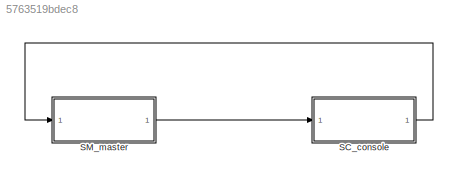
MODEL slx_5763519bdec8
KIND model
CONFIG AbsTol = auto
CONFIG EnableMultiTasking = on
CONFIG FixedStep = 0.001
CONFIG MaxStep = auto
CONFIG MinStep = auto
CONFIG RelTol = 1e-3
CONFIG SampleTimeConstraint = Unconstrained
CONFIG SolverName = ode4
CONFIG StartTime = 0.0
CONFIG StopTime = inf
WORKSPACE source: MATLAB code (in-file)
WORKSPACE code: addpath src\model
WORKSPACE code: addpath src\utils
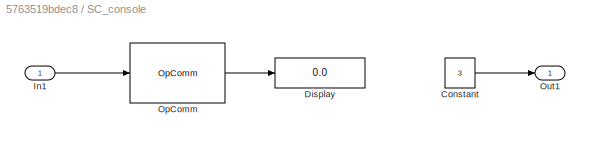
BLOCK [SubSystem] SC_console
  Ports = [1, 1]
  RequestExecContextInheritance = off
BLOCK [Constant] SC_console/Constant
  Value = 3
BLOCK [Display] SC_console/Display
  Decimation = 1
  Ports = [1]
BLOCK [Inport] SC_console/In1
BLOCK [Reference] SC_console/OpComm  REF=rtlab/OpComm
  Ports = [1, 1]
  SourceBlock = rtlab/OpComm
  SourceProductName = RT-LAB
  SourceType = RT-LAB OpComm
BLOCK [Outport] SC_console/Out1
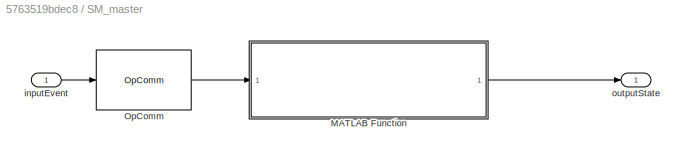
BLOCK [SubSystem] SM_master
  Ports = [1, 1]
  RequestExecContextInheritance = off
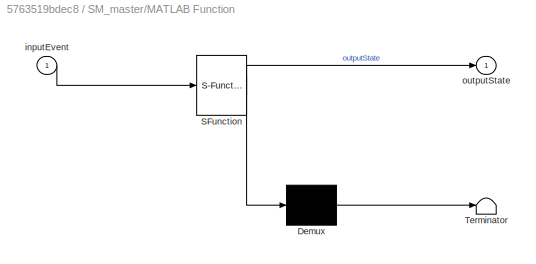
BLOCK [SubSystem] SM_master/MATLAB Function
  ErrorFcn = Stateflow.Translate.translate
  PermitHierarchicalResolution = ExplicitOnly
  Ports = [1, 1]
  RequestExecContextInheritance = off
  SFBlockType = MATLAB Function
  TreatAsAtomicUnit = on
BLOCK [Demux] SM_master/MATLAB Function/ Demux 
  Outputs = 1
  Ports = [1, 1]
BLOCK [S-Function] SM_master/MATLAB Function/ SFunction 
  EnableBusSupport = on
  FunctionName = sf_sfun
  PortCounts = [1 2]
  Ports = [1, 2]
  SFcnIsStateOwnerBlock = off
  SFunctionDeploymentMode = off
  Tag = Stateflow S-Function 2
BLOCK [Terminator] SM_master/MATLAB Function/ Terminator 
BLOCK [Inport] SM_master/MATLAB Function/inputEvent
BLOCK [Outport] SM_master/MATLAB Function/outputState
BLOCK [Reference] SM_master/OpComm  REF=rtlab/OpComm
  Ports = [1, 1]
  SourceBlock = rtlab/OpComm
  SourceProductName = RT-LAB
  SourceType = RT-LAB OpComm
BLOCK [Inport] SM_master/inputEvent
BLOCK [Outport] SM_master/outputState
LINE SC_console/Constant:1 -> SC_console/Out1:1
LINE SC_console/In1:1 -> SC_console/OpComm:1
LINE SC_console/OpComm:1 -> SC_console/Display:1
LINE SC_console:1 -> SM_master:1
LINE SM_master/MATLAB Function:1 -> SM_master/outputState:1
LINE SM_master/OpComm:1 -> SM_master/MATLAB Function:1
LINE SM_master/inputEvent:1 -> SM_master/OpComm:1
LINE SM_master:1 -> SC_console:1
CHART SM_master/MATLAB Function states=1 transitions=1
  STATE_LABEL 'eML_blk_kernel()'
  STATE_LABEL "SCRIPT:\nfunction outputState   = stateMachineFcn(inputEvent)\n% Example of a State Machine with 3 states.\npersistent stateMachine\n\nif (isempty(stateMachine))\n    \n    % Create the states with the State Class.\n    s0 = State(0, 's0', [1,0,1,1,1]);\n    s1 = State(1, 's1', [1,1,0,1,1]);\n    s2 = State(2, 's2', [1,0,1,1,1]);\n\n    % Group it in a cell array.\n    statesArray = {s0, s1, s2};\n\n    % Transi...<+515ch>"
CHART  states=0 transitions=0
